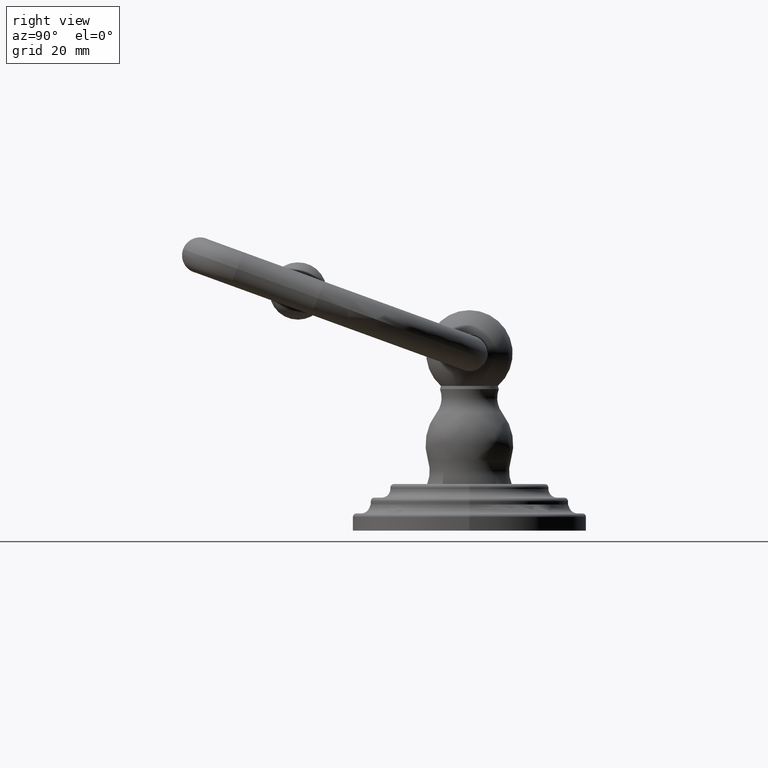
[diagram: clean part render]
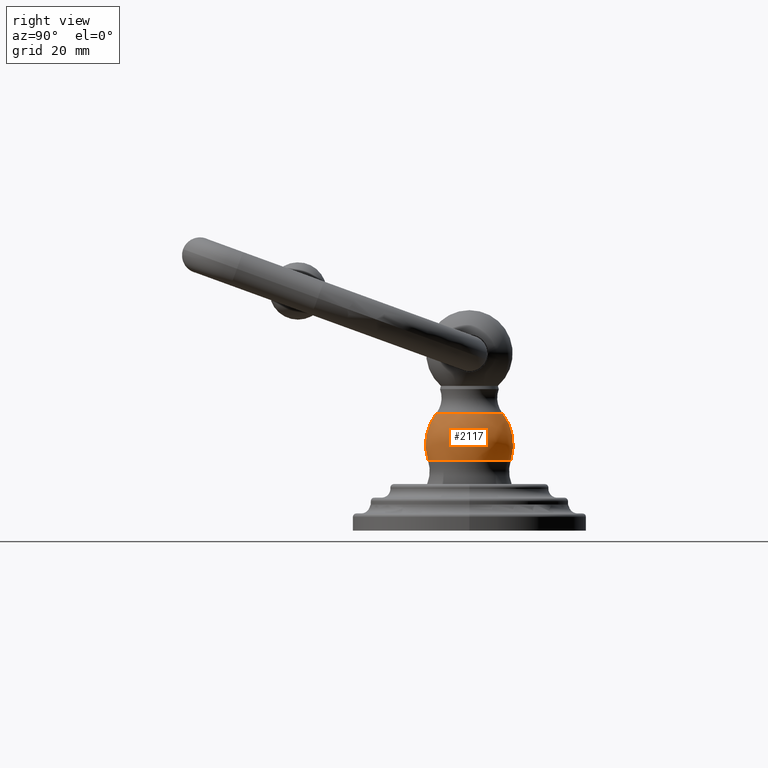
[diagram: same view with one face highlighted and labeled with its STEP entity id]
A machine part, right view. The second image highlights one B-rep face of the part: STEP entity #2117.
In plain terms, the highlighted face is a freeform B-spline surface patch.
Its self-contained STEP definition (entity closure, byte-faithful):
#488=CARTESIAN_POINT('',(0.E0,7.8E-2,9.45E-1));
#489=DIRECTION('',(-1.E0,0.E0,0.E0));
#490=DIRECTION('',(0.E0,-9.513021252627E-1,-3.082600630484E-1));
#491=AXIS2_PLACEMENT_3D('',#488,#489,#490);
#504=CARTESIAN_POINT('',(0.E0,-7.8E-2,9.45E-1));
#505=DIRECTION('',(1.E0,0.E0,0.E0));
#506=DIRECTION('',(0.E0,9.513021252627E-1,-3.082600630484E-1));
#507=AXIS2_PLACEMENT_3D('',#504,#505,#506);
#512=CARTESIAN_POINT('',(0.E0,0.E0,7.723743646929E-1));
#513=DIRECTION('',(0.E0,0.E0,1.E0));
#514=DIRECTION('',(0.E0,-1.E0,0.E0));
#515=AXIS2_PLACEMENT_3D('',#512,#513,#514);
#520=CARTESIAN_POINT('',(0.E0,0.E0,1.289080822273E0));
#521=DIRECTION('',(0.E0,0.E0,1.E0));
#522=DIRECTION('',(0.E0,-1.E0,0.E0));
#523=AXIS2_PLACEMENT_3D('',#520,#521,#522);
#1437=CARTESIAN_POINT('',(0.E0,-4.547291901471E-1,7.723743646929E-1));
#1438=CARTESIAN_POINT('',(0.E0,-3.638239329685E-1,1.289080822273E0));
#1439=VERTEX_POINT('',#1437);
#1440=VERTEX_POINT('',#1438);
#1447=CARTESIAN_POINT('',(0.E0,4.547291901471E-1,7.723743646929E-1));
#1448=CARTESIAN_POINT('',(0.E0,3.638239329685E-1,1.289080822273E0));
#1449=VERTEX_POINT('',#1447);
#1450=VERTEX_POINT('',#1448);
#2081=CARTESIAN_POINT('',(-2.833496433791E-2,-4.503713613182E-1,
7.620193391562E-1));
#2082=CARTESIAN_POINT('',(-3.239472864698E-2,-5.148994671842E-1,
9.490324789657E-1));
#2083=CARTESIAN_POINT('',(-3.024189971279E-2,-4.806812311486E-1,
1.143913853767E0));
#2084=CARTESIAN_POINT('',(-2.241813647E-2,-3.563260754383E-1,1.297630660172E0));
#2085=CARTESIAN_POINT('',(2.488229396803E-1,-4.678086586262E-1,
7.620193391562E-1));
#2086=CARTESIAN_POINT('',(2.844736812075E-1,-5.348351377534E-1,
9.490324789657E-1));
#2087=CARTESIAN_POINT('',(2.655686556833E-1,-4.992920538115E-1,
1.143913853767E0));
#2088=CARTESIAN_POINT('',(1.968644305353E-1,-3.701221651760E-1,
1.297630660172E0));
#2089=CARTESIAN_POINT('',(4.512618234458E-1,-2.777058931625E-1,
7.620193391562E-1));
#2090=CARTESIAN_POINT('',(5.159175125451E-1,-3.174949135415E-1,
9.490324789657E-1));
#2091=CARTESIAN_POINT('',(4.816316211347E-1,-2.963954240604E-1,
1.143913853767E0));
#2092=CARTESIAN_POINT('',(3.570305937592E-1,-2.197161265917E-1,
1.297630660172E0));
#2093=CARTESIAN_POINT('',(4.512618234458E-1,0.E0,7.620193391562E-1));
#2094=CARTESIAN_POINT('',(5.159175125451E-1,0.E0,9.490324789657E-1));
#2095=CARTESIAN_POINT('',(4.816316211347E-1,0.E0,1.143913853767E0));
#2096=CARTESIAN_POINT('',(3.570305937592E-1,0.E0,1.297630660172E0));
#2097=CARTESIAN_POINT('',(4.512618234458E-1,2.777058931625E-1,
7.620193391562E-1));
#2098=CARTESIAN_POINT('',(5.159175125451E-1,3.174949135415E-1,
9.490324789657E-1));
#2099=CARTESIAN_POINT('',(4.816316211347E-1,2.963954240604E-1,
1.143913853767E0));
#2100=CARTESIAN_POINT('',(3.570305937592E-1,2.197161265917E-1,
1.297630660172E0));
#2101=CARTESIAN_POINT('',(2.488229396803E-1,4.678086586262E-1,
7.620193391562E-1));
#2102=CARTESIAN_POINT('',(2.844736812075E-1,5.348351377534E-1,
9.490324789657E-1));
#2103=CARTESIAN_POINT('',(2.655686556833E-1,4.992920538115E-1,
1.143913853767E0));
#2104=CARTESIAN_POINT('',(1.968644305353E-1,3.701221651760E-1,
1.297630660172E0));
#2105=CARTESIAN_POINT('',(-2.833496433791E-2,4.503713613182E-1,
7.620193391562E-1));
#2106=CARTESIAN_POINT('',(-3.239472864698E-2,5.148994671842E-1,
9.490324789657E-1));
#2107=CARTESIAN_POINT('',(-3.024189971279E-2,4.806812311486E-1,
1.143913853767E0));
#2108=CARTESIAN_POINT('',(-2.241813647E-2,3.563260754383E-1,1.297630660172E0));
#2109=(BOUNDED_SURFACE()B_SPLINE_SURFACE(3,3,((#2081,#2082,#2083,#2084),(#2085,
#2086,#2087,#2088),(#2089,#2090,#2091,#2092),(#2093,#2094,#2095,#2096),(#2097,
#2098,#2099,#2100),(#2101,#2102,#2103,#2104),(#2105,#2106,#2107,#2108)),
.UNSPECIFIED.,.F.,.F.,.F.)B_SPLINE_SURFACE_WITH_KNOTS((4,3,4),(4,4),(0.E0,1.E0,
2.E0),(0.E0,1.E0),.UNSPECIFIED.)GEOMETRIC_REPRESENTATION_ITEM()RATIONAL_B_SPLINE_SURFACE(((1.266955274892E0,1.160698551695E0,1.160698551695E0,1.266955274892E0),(
1.000512136143E0,9.166014068438E-1,9.166014068438E-1,1.000512136143E0),(
1.000512136143E0,9.166014068438E-1,9.166014068438E-1,1.000512136143E0),(
1.266955274892E0,1.160698551695E0,1.160698551695E0,1.266955274892E0),(
1.000512136143E0,9.166014068438E-1,9.166014068438E-1,1.000512136143E0),(
1.000512136143E0,9.166014068438E-1,9.166014068438E-1,1.000512136143E0),(
1.266955274892E0,1.160698551695E0,1.160698551695E0,1.266955274892E0)))REPRESENTATION_ITEM('')SURFACE());
#2110=ORIENTED_EDGE('',*,*,#2064,.T.);
#2112=ORIENTED_EDGE('',*,*,#2111,.T.);
#2113=ORIENTED_EDGE('',*,*,#2067,.F.);
#2114=ORIENTED_EDGE('',*,*,#2001,.F.);
#2115=EDGE_LOOP('',(#2110,#2112,#2113,#2114));
#2116=FACE_OUTER_BOUND('',#2115,.F.);
#492=CIRCLE('',#491,5.6E-1);
#508=CIRCLE('',#507,5.6E-1);
#516=CIRCLE('',#515,4.547291901471E-1);
#524=CIRCLE('',#523,3.638239329685E-1);
#2001=EDGE_CURVE('',#1439,#1449,#516,.T.);
#2064=EDGE_CURVE('',#1439,#1440,#492,.T.);
#2067=EDGE_CURVE('',#1449,#1450,#508,.T.);
#2111=EDGE_CURVE('',#1440,#1450,#524,.T.);
#2117=ADVANCED_FACE('',(#2116),#2109,.T.);